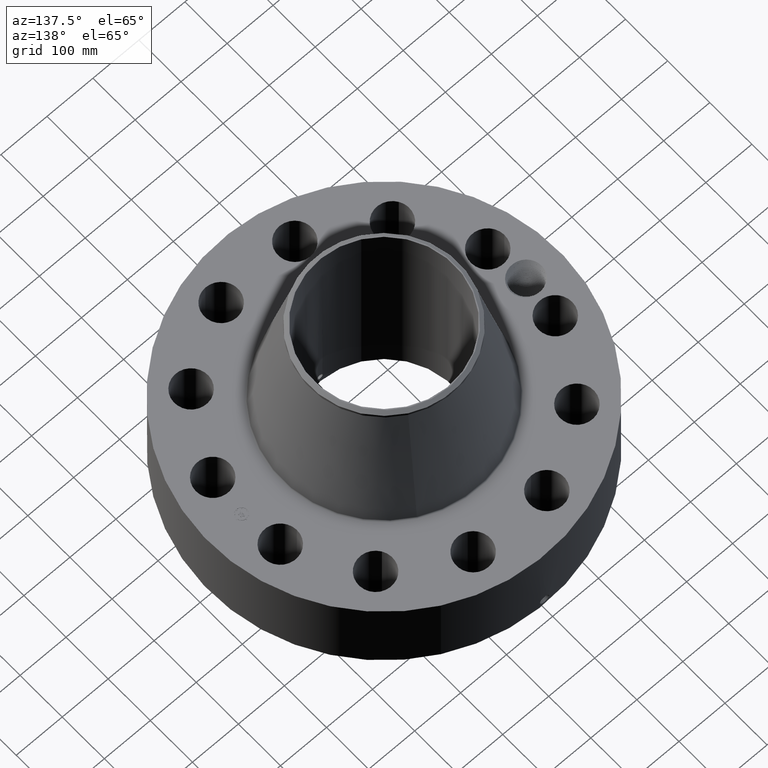
[diagram: clean part render]
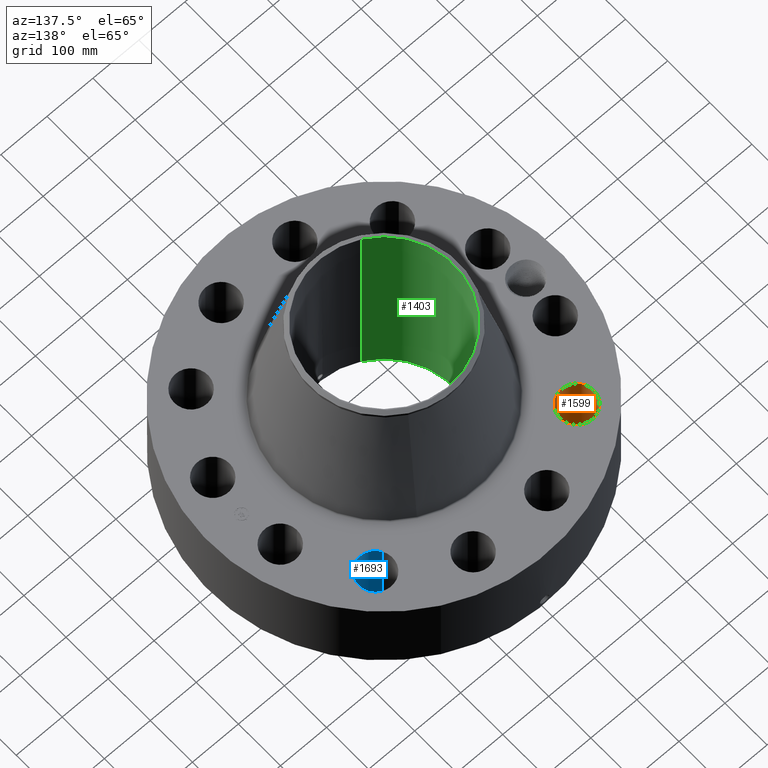
[diagram: same view with three faces highlighted in distinct colors, each labeled with its STEP entity id]
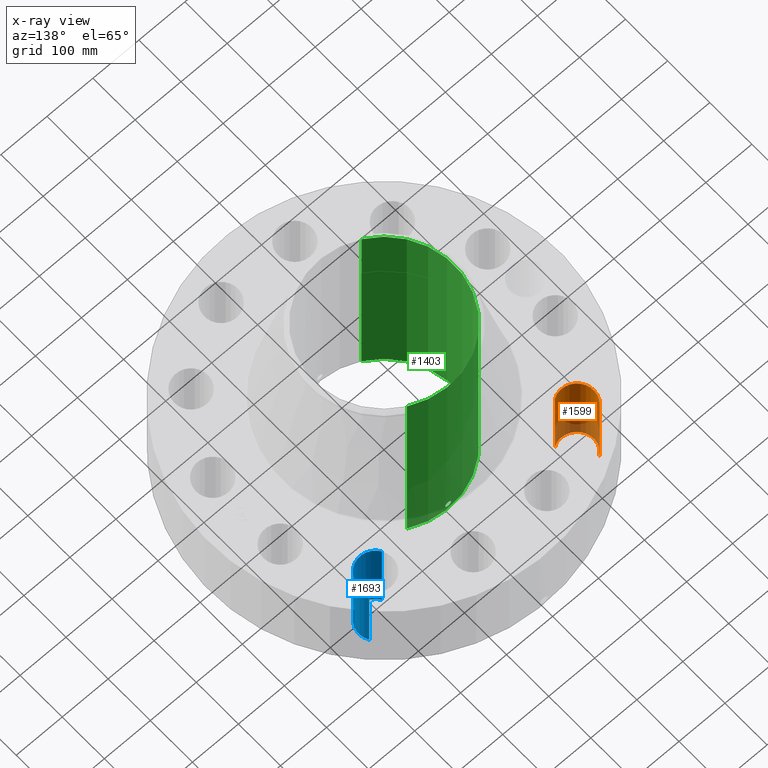
[diagram: x-ray of the same camera — body ghosted, the three highlighted faces saturated]
A machine part, auxiliary view with three faces highlighted in distinct colors.
The next image is the same camera in x-ray (body ghosted, the three faces saturated) — at least one of them is partly hidden behind the body in this view.
Their STEP definitions:

[orange] entity #1599 — the highlighted cylindrical surface (edge-blend (fillet) strip) has radius 36.576 mm, axis along (0, 0, -1).
#386=AXIS2_PLACEMENT_3D('Circle Axis2P3D',#384,#385,$) ;
#802=AXIS2_PLACEMENT_3D('Circle Axis2P3D',#800,#801,$) ;
#1581=AXIS2_PLACEMENT_3D('Cylinder Axis2P3D',#1578,#1579,#1580) ;
#384=CARTESIAN_POINT('Axis2P3D Location',(-8.6196316627,8.6196316627,0.250000000001)) ;
#388=CARTESIAN_POINT('Vertex',(-7.87040538927,7.38989185639,0.250000000001)) ;
#390=CARTESIAN_POINT('Vertex',(-9.36885793613,9.84937146901,0.250000000001)) ;
#795=CARTESIAN_POINT('Vertex',(-9.36885793613,9.84937146901,7.50000000003)) ;
#797=CARTESIAN_POINT('Vertex',(-7.87040538927,7.38989185639,7.50000000003)) ;
#800=CARTESIAN_POINT('Axis2P3D Location',(-8.6196316627,8.6196316627,7.50000000003)) ;
#1578=CARTESIAN_POINT('Axis2P3D Location',(-8.6196316627,8.6196316627,7.49606299216)) ;
#1583=CARTESIAN_POINT('Line Origine',(-7.87040538927,7.38989185639,3.87500000002)) ;
#1588=CARTESIAN_POINT('Line Origine',(-9.36885793613,9.84937146901,3.87500000002)) ;
#385=DIRECTION('Axis2P3D Direction',(0.,0.,-0.0393700787402)) ;
#801=DIRECTION('Axis2P3D Direction',(0.,0.,-0.0393700787402)) ;
#1579=DIRECTION('Axis2P3D Direction',(0.,0.,-0.0393700787402)) ;
#1580=DIRECTION('Axis2P3D XDirection',(-0.0204840954021,0.0336214951417,0.)) ;
#1584=DIRECTION('Vector Direction',(0.,0.,-0.0393700787402)) ;
#1589=DIRECTION('Vector Direction',(0.,0.,-0.0393700787402)) ;
#1585=VECTOR('Line Direction',#1584,0.0393700787402) ;
#1590=VECTOR('Line Direction',#1589,0.0393700787402) ;
#1594=ORIENTED_EDGE('',*,*,#1587,.F.) ;
#1595=ORIENTED_EDGE('',*,*,#392,.T.) ;
#1596=ORIENTED_EDGE('',*,*,#1592,.T.) ;
#1597=ORIENTED_EDGE('',*,*,#804,.F.) ;
#1599=ADVANCED_FACE('PartBody',(#1598),#1582,.F.) ;
#387=CIRCLE('generated circle',#386,1.44000000001) ;
#803=CIRCLE('generated circle',#802,1.44000000001) ;
#1582=CYLINDRICAL_SURFACE('generated cylinder',#1581,1.44000000001) ;
#392=EDGE_CURVE('',#389,#391,#387,.T.) ;
#804=EDGE_CURVE('',#798,#796,#803,.T.) ;
#1587=EDGE_CURVE('',#389,#798,#1586,.F.) ;
#1592=EDGE_CURVE('',#391,#796,#1591,.F.) ;
#1593=EDGE_LOOP('',(#1594,#1595,#1596,#1597)) ;
#1598=FACE_OUTER_BOUND('',#1593,.T.) ;
#1586=LINE('Line',#1583,#1585) ;
#1591=LINE('Line',#1588,#1590) ;
#389=VERTEX_POINT('',#388) ;
#391=VERTEX_POINT('',#390) ;
#796=VERTEX_POINT('',#795) ;
#798=VERTEX_POINT('',#797) ;

[blue] entity #1693 — the highlighted cylindrical surface (edge-blend (fillet) strip) has radius 36.576 mm, axis along (0, 0, -1).
#449=AXIS2_PLACEMENT_3D('Circle Axis2P3D',#447,#448,$) ;
#847=AXIS2_PLACEMENT_3D('Circle Axis2P3D',#845,#846,$) ;
#1668=AXIS2_PLACEMENT_3D('Cylinder Axis2P3D',#1665,#1666,#1667) ;
#442=CARTESIAN_POINT('Vertex',(7.38989185639,7.87040538927,0.250000000001)) ;
#444=CARTESIAN_POINT('Vertex',(9.84937146901,9.36885793613,0.250000000001)) ;
#447=CARTESIAN_POINT('Axis2P3D Location',(8.6196316627,8.6196316627,0.250000000001)) ;
#845=CARTESIAN_POINT('Axis2P3D Location',(8.6196316627,8.6196316627,7.50000000003)) ;
#849=CARTESIAN_POINT('Vertex',(9.84937146901,9.36885793613,7.50000000003)) ;
#851=CARTESIAN_POINT('Vertex',(7.38989185639,7.87040538927,7.50000000003)) ;
#1665=CARTESIAN_POINT('Axis2P3D Location',(8.6196316627,8.6196316627,7.49606299216)) ;
#1670=CARTESIAN_POINT('Line Origine',(7.38989185639,7.87040538927,3.87500000002)) ;
#1675=CARTESIAN_POINT('Line Origine',(9.84937146901,9.36885793613,3.87500000002)) ;
#448=DIRECTION('Axis2P3D Direction',(0.,0.,-0.0393700787402)) ;
#846=DIRECTION('Axis2P3D Direction',(0.,0.,-0.0393700787402)) ;
#1666=DIRECTION('Axis2P3D Direction',(0.,0.,-0.0393700787402)) ;
#1667=DIRECTION('Axis2P3D XDirection',(0.0336214951417,0.0204840954021,0.)) ;
#1671=DIRECTION('Vector Direction',(0.,0.,-0.0393700787402)) ;
#1676=DIRECTION('Vector Direction',(0.,0.,-0.0393700787402)) ;
#1672=VECTOR('Line Direction',#1671,0.0393700787402) ;
#1677=VECTOR('Line Direction',#1676,0.0393700787402) ;
#1688=ORIENTED_EDGE('',*,*,#1679,.F.) ;
#1689=ORIENTED_EDGE('',*,*,#451,.T.) ;
#1690=ORIENTED_EDGE('',*,*,#1674,.T.) ;
#1691=ORIENTED_EDGE('',*,*,#853,.F.) ;
#1693=ADVANCED_FACE('PartBody',(#1692),#1669,.F.) ;
#450=CIRCLE('generated circle',#449,1.44000000001) ;
#848=CIRCLE('generated circle',#847,1.44000000001) ;
#1669=CYLINDRICAL_SURFACE('generated cylinder',#1668,1.44000000001) ;
#451=EDGE_CURVE('',#445,#443,#450,.T.) ;
#853=EDGE_CURVE('',#850,#852,#848,.T.) ;
#1674=EDGE_CURVE('',#443,#852,#1673,.F.) ;
#1679=EDGE_CURVE('',#445,#850,#1678,.F.) ;
#1687=EDGE_LOOP('',(#1688,#1689,#1690,#1691)) ;
#1692=FACE_OUTER_BOUND('',#1687,.T.) ;
#1673=LINE('Line',#1670,#1672) ;
#1678=LINE('Line',#1675,#1677) ;
#443=VERTEX_POINT('',#442) ;
#445=VERTEX_POINT('',#444) ;
#850=VERTEX_POINT('',#849) ;
#852=VERTEX_POINT('',#851) ;

[green] entity #1403 — the highlighted cylindrical surface (partial cylindrical patch) has radius 152.4 mm, axis along (0, 0, -1).
#269=AXIS2_PLACEMENT_3D('Circle Axis2P3D',#267,#268,$) ;
#1280=AXIS2_PLACEMENT_3D('Cylinder Axis2P3D',#1277,#1278,#1279) ;
#1352=AXIS2_PLACEMENT_3D('Circle Axis2P3D',#1350,#1351,$) ;
#262=CARTESIAN_POINT('Vertex',(2.87655323164,5.26549537136,0.250000000001)) ;
#264=CARTESIAN_POINT('Vertex',(-2.87655323164,-5.26549537136,0.250000000001)) ;
#267=CARTESIAN_POINT('Axis2P3D Location',(0.,0.,0.250000000001)) ;
#1277=CARTESIAN_POINT('Axis2P3D Location',(0.,0.,9.37500000004)) ;
#1286=CARTESIAN_POINT('Vertex',(2.87655323164,5.26549537136,18.5000000001)) ;
#1288=CARTESIAN_POINT('Vertex',(-2.87655323164,-5.26549537136,18.5000000001)) ;
#1291=CARTESIAN_POINT('Line Origine',(2.87655323164,5.26549537136,9.37500000004)) ;
#1296=CARTESIAN_POINT('Line Origine',(-2.87655323164,-5.26549537136,9.37500000004)) ;
#1350=CARTESIAN_POINT('Axis2P3D Location',(0.,0.,18.5000000001)) ;
#1362=CARTESIAN_POINT('Control Point',(0.219395640473,5.99598745439,1.05985638466)) ;
#1363=CARTESIAN_POINT('Control Point',(0.206921629785,5.99644388356,1.08268990806)) ;
#1364=CARTESIAN_POINT('Control Point',(0.191477780351,5.99697649836,1.10389945678)) ;
#1365=CARTESIAN_POINT('Control Point',(0.173343976058,5.99754416114,1.12297163388)) ;
#1366=CARTESIAN_POINT('Control Point',(0.112128177183,5.99918620401,1.17245500395)) ;
#1367=CARTESIAN_POINT('Control Point',(0.0349673347365,6.00025303579,1.19597696767)) ;
#1368=CARTESIAN_POINT('Control Point',(-0.0195757113037,6.00033259377,1.19761228424)) ;
#1369=CARTESIAN_POINT('Control Point',(-0.124165650277,5.99915787174,1.1724620159)) ;
#1370=CARTESIAN_POINT('Control Point',(-0.203213264274,5.99672716909,1.09953266413)) ;
#1371=CARTESIAN_POINT('Control Point',(-0.232185259952,5.99553089066,1.05330752747)) ;
#1372=CARTESIAN_POINT('Control Point',(-0.25583635494,5.99454665267,0.975155321532)) ;
#1373=CARTESIAN_POINT('Control Point',(-0.248290142148,5.99486042488,0.895776978872)) ;
#1374=CARTESIAN_POINT('Control Point',(-0.242056190627,5.99512342585,0.869202695464)) ;
#1375=CARTESIAN_POINT('Control Point',(-0.232320000178,5.99551454677,0.843801497102)) ;
#1376=CARTESIAN_POINT('Control Point',(-0.219395640473,5.99598745439,0.820143615352)) ;
#1377=CARTESIAN_POINT('Vertex',(0.219395640473,5.99598745439,1.05985638466)) ;
#1379=CARTESIAN_POINT('Vertex',(-0.219395640473,5.99598745439,0.820143615352)) ;
#1383=CARTESIAN_POINT('Control Point',(-0.219395640473,5.99598745439,0.820143615352)) ;
#1384=CARTESIAN_POINT('Control Point',(-0.206921629786,5.99644388356,0.797310091947)) ;
#1385=CARTESIAN_POINT('Control Point',(-0.191477780351,5.99697649836,0.776100543232)) ;
#1386=CARTESIAN_POINT('Control Point',(-0.173343976056,5.99754416114,0.757028366127)) ;
#1387=CARTESIAN_POINT('Control Point',(-0.112128177182,5.99918620401,0.707544996059)) ;
#1388=CARTESIAN_POINT('Control Point',(-0.0349673347364,6.00025303579,0.684023032334)) ;
#1389=CARTESIAN_POINT('Control Point',(0.0195757113081,6.00033259377,0.682387715763)) ;
#1390=CARTESIAN_POINT('Control Point',(0.124165650281,5.99915787174,0.707537984106)) ;
#1391=CARTESIAN_POINT('Control Point',(0.203213264279,5.99672716909,0.780467335881)) ;
#1392=CARTESIAN_POINT('Control Point',(0.232185259952,5.99553089066,0.826692472538)) ;
#1393=CARTESIAN_POINT('Control Point',(0.255836354933,5.99454665267,0.904844678451)) ;
#1394=CARTESIAN_POINT('Control Point',(0.248290142153,5.99486042488,0.984223021088)) ;
#1395=CARTESIAN_POINT('Control Point',(0.242056190609,5.99512342585,1.01079730459)) ;
#1396=CARTESIAN_POINT('Control Point',(0.232320000166,5.99551454677,1.03619850293)) ;
#1397=CARTESIAN_POINT('Control Point',(0.219395640473,5.99598745439,1.05985638466)) ;
#268=DIRECTION('Axis2P3D Direction',(0.,0.,-0.0393700787402)) ;
#1278=DIRECTION('Axis2P3D Direction',(0.,0.,-0.0393700787402)) ;
#1279=DIRECTION('Axis2P3D XDirection',(-0.0188750212049,-0.0345504945626,0.)) ;
#1292=DIRECTION('Vector Direction',(0.,0.,-0.0393700787402)) ;
#1297=DIRECTION('Vector Direction',(0.,0.,-0.0393700787402)) ;
#1351=DIRECTION('Axis2P3D Direction',(0.,0.,-0.0393700787402)) ;
#1293=VECTOR('Line Direction',#1292,0.0393700787402) ;
#1298=VECTOR('Line Direction',#1297,0.0393700787402) ;
#1356=ORIENTED_EDGE('',*,*,#1354,.F.) ;
#1357=ORIENTED_EDGE('',*,*,#1300,.T.) ;
#1358=ORIENTED_EDGE('',*,*,#271,.T.) ;
#1359=ORIENTED_EDGE('',*,*,#1295,.F.) ;
#1400=ORIENTED_EDGE('',*,*,#1381,.F.) ;
#1401=ORIENTED_EDGE('',*,*,#1398,.F.) ;
#1402=FACE_BOUND('',#1399,.T.) ;
#1403=ADVANCED_FACE('PartBody',(#1360,#1402),#1281,.F.) ;
#1361=B_SPLINE_CURVE_WITH_KNOTS('',5,(#1362,#1363,#1364,#1365,#1366,#1367,#1368,#1369,#1370,#1371,#1372,#1373,#1374,#1375,#1376),.UNSPECIFIED.,.F.,.U.,(6,3,3,3,6),(0.,4.6738038213,14.0224404794,23.3724485696,28.2149906585),.UNSPECIFIED.) ;
#1382=B_SPLINE_CURVE_WITH_KNOTS('',5,(#1383,#1384,#1385,#1386,#1387,#1388,#1389,#1390,#1391,#1392,#1393,#1394,#1395,#1396,#1397),.UNSPECIFIED.,.F.,.U.,(6,3,3,3,6),(0.,4.67380382126,14.0224404792,23.3724485697,28.2149906541),.UNSPECIFIED.) ;
#270=CIRCLE('generated circle',#269,6.00000000002) ;
#1353=CIRCLE('generated circle',#1352,6.00000000002) ;
#1281=CYLINDRICAL_SURFACE('generated cylinder',#1280,6.00000000002) ;
#271=EDGE_CURVE('',#265,#263,#270,.T.) ;
#1295=EDGE_CURVE('',#1287,#263,#1294,.T.) ;
#1300=EDGE_CURVE('',#1289,#265,#1299,.T.) ;
#1354=EDGE_CURVE('',#1289,#1287,#1353,.T.) ;
#1381=EDGE_CURVE('',#1378,#1380,#1361,.T.) ;
#1398=EDGE_CURVE('',#1380,#1378,#1382,.T.) ;
#1355=EDGE_LOOP('',(#1356,#1357,#1358,#1359)) ;
#1399=EDGE_LOOP('',(#1400,#1401)) ;
#1360=FACE_OUTER_BOUND('',#1355,.T.) ;
#1294=LINE('Line',#1291,#1293) ;
#1299=LINE('Line',#1296,#1298) ;
#263=VERTEX_POINT('',#262) ;
#265=VERTEX_POINT('',#264) ;
#1287=VERTEX_POINT('',#1286) ;
#1289=VERTEX_POINT('',#1288) ;
#1378=VERTEX_POINT('',#1377) ;
#1380=VERTEX_POINT('',#1379) ;